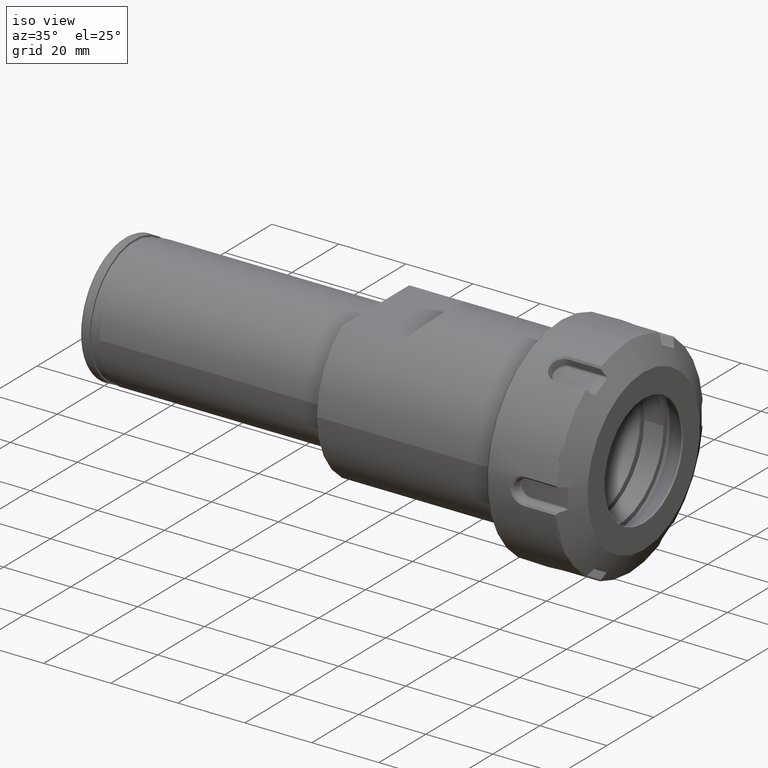
[diagram: clean part render]
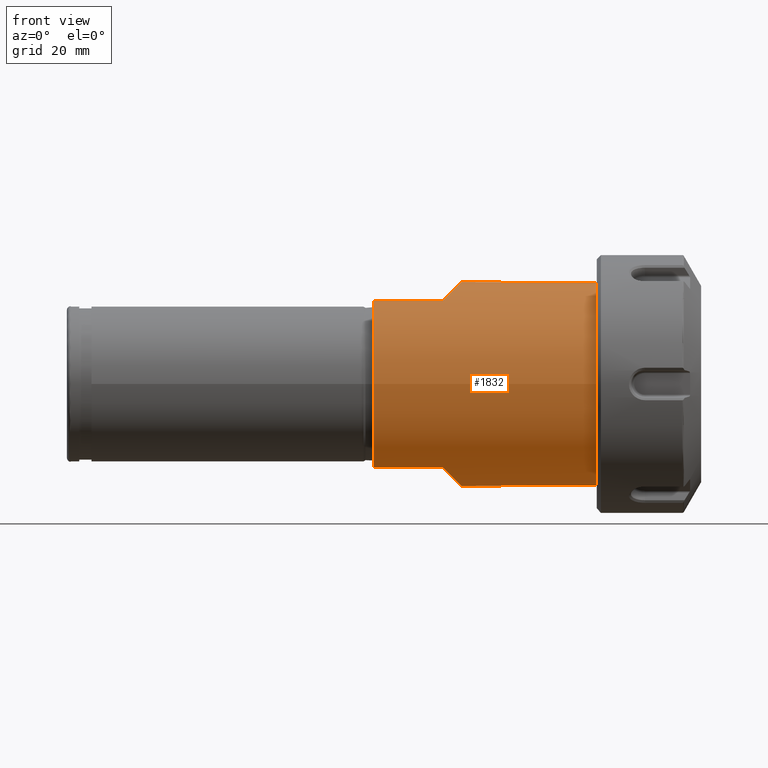
[diagram: tour spotlight — one face highlighted and labeled with its STEP entity id]
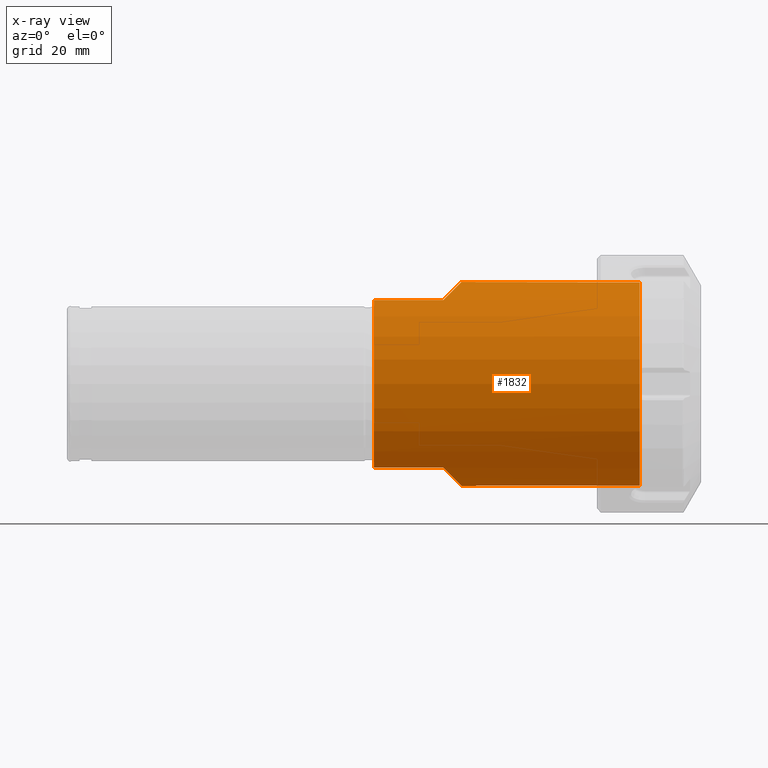
[diagram: x-ray of the same camera — body ghosted, this tour face saturated]
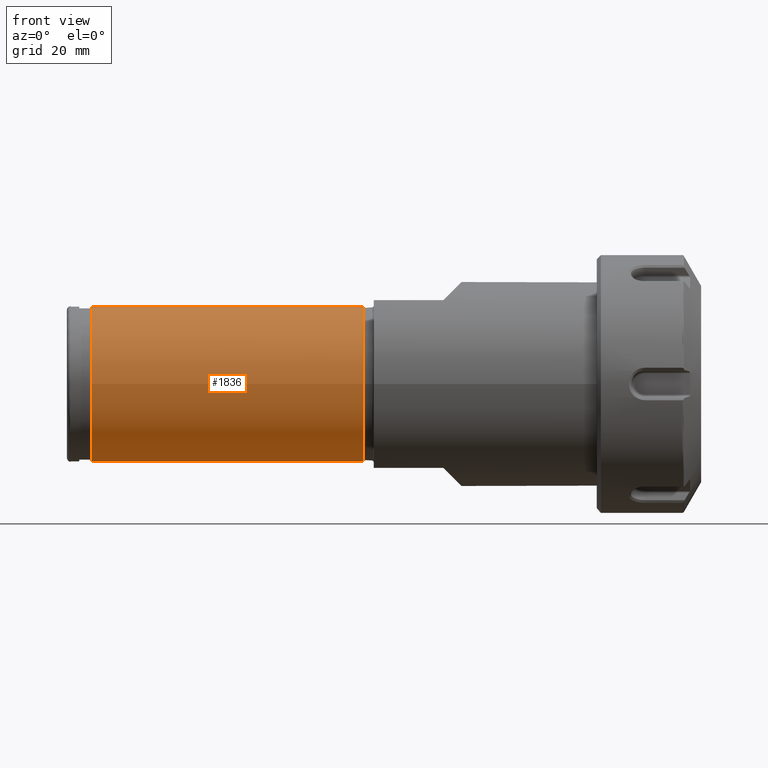
[diagram: tour spotlight — one face highlighted and labeled with its STEP entity id]
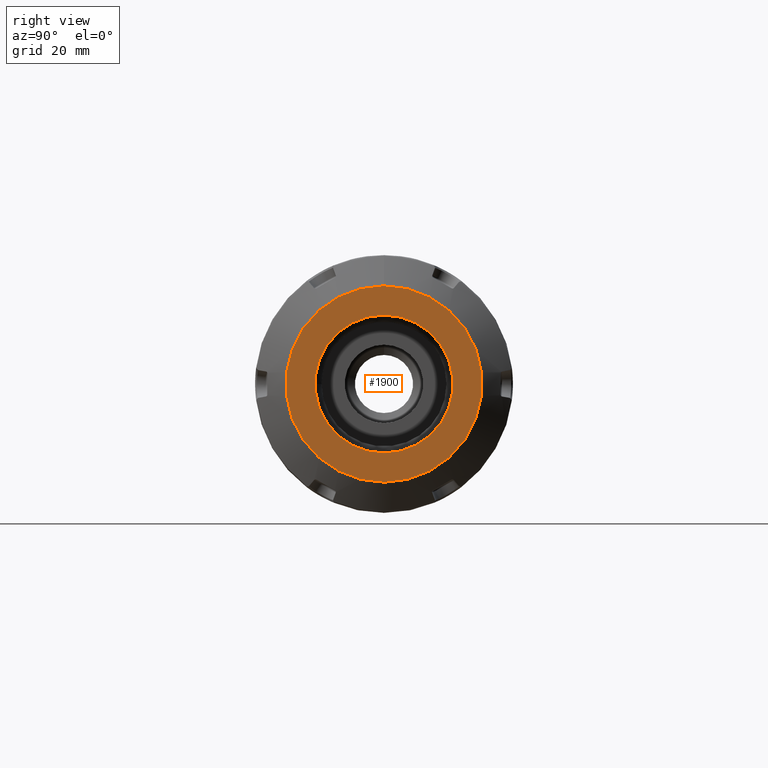
[diagram: tour spotlight — one face highlighted and labeled with its STEP entity id]
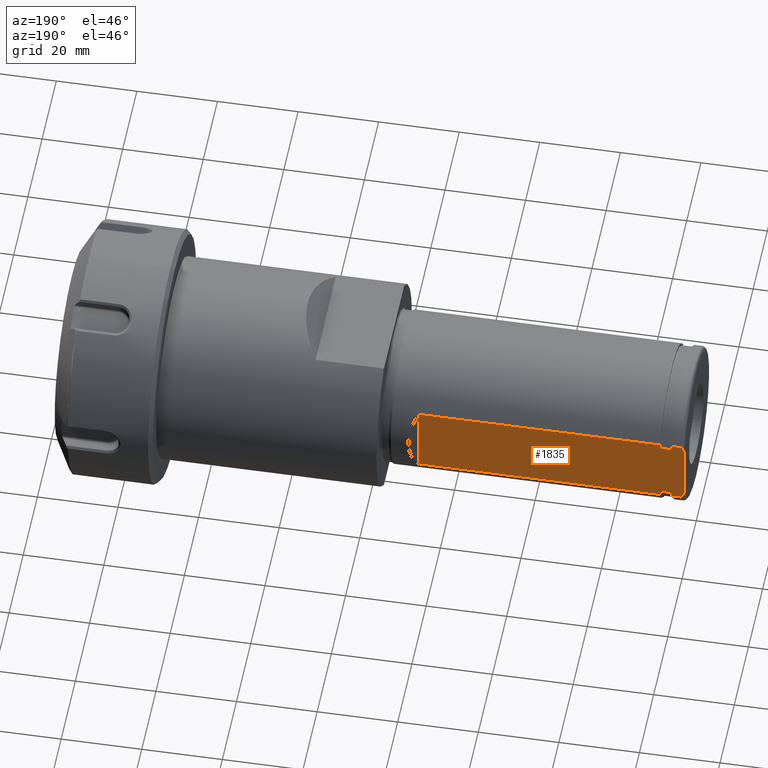
[diagram: tour spotlight — one face highlighted and labeled with its STEP entity id]
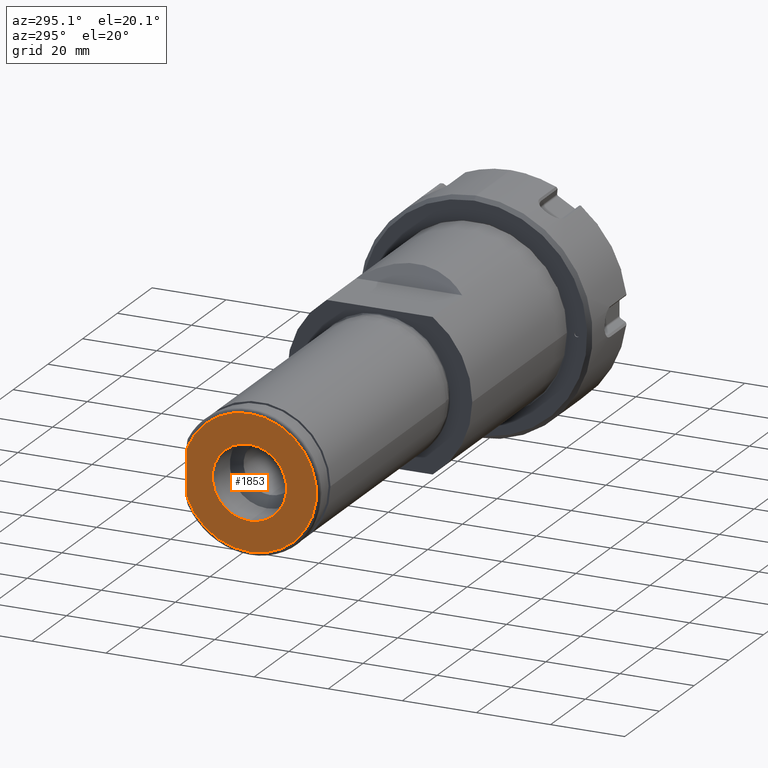
[diagram: tour spotlight — one face highlighted and labeled with its STEP entity id]
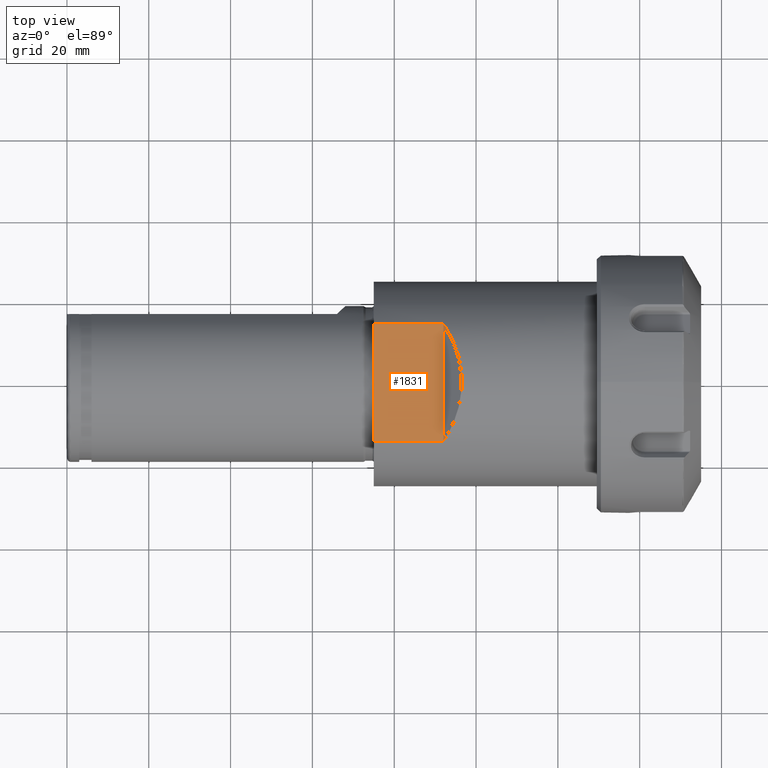
[diagram: tour spotlight — one face highlighted and labeled with its STEP entity id]
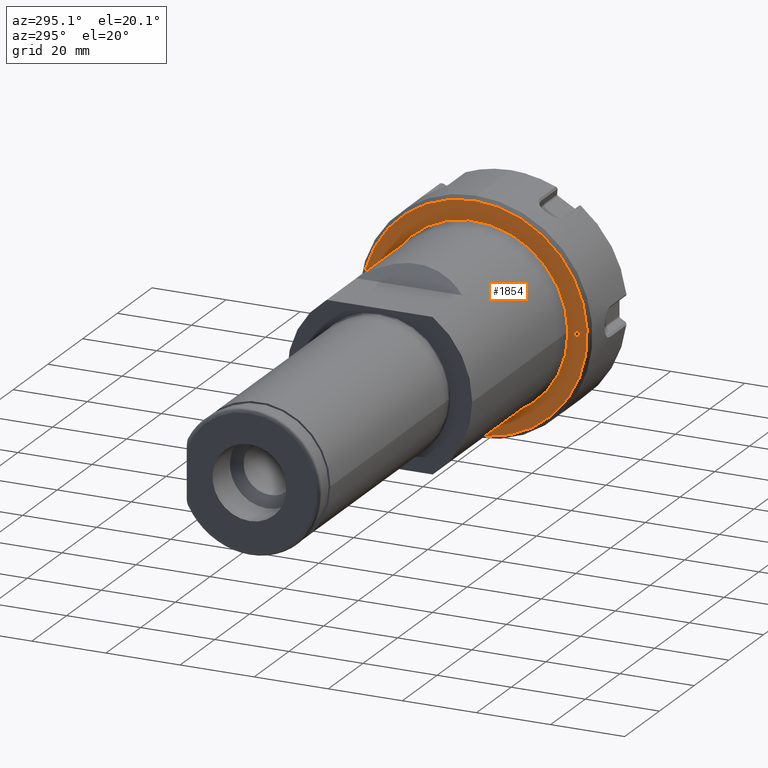
[diagram: tour spotlight — one face highlighted and labeled with its STEP entity id]
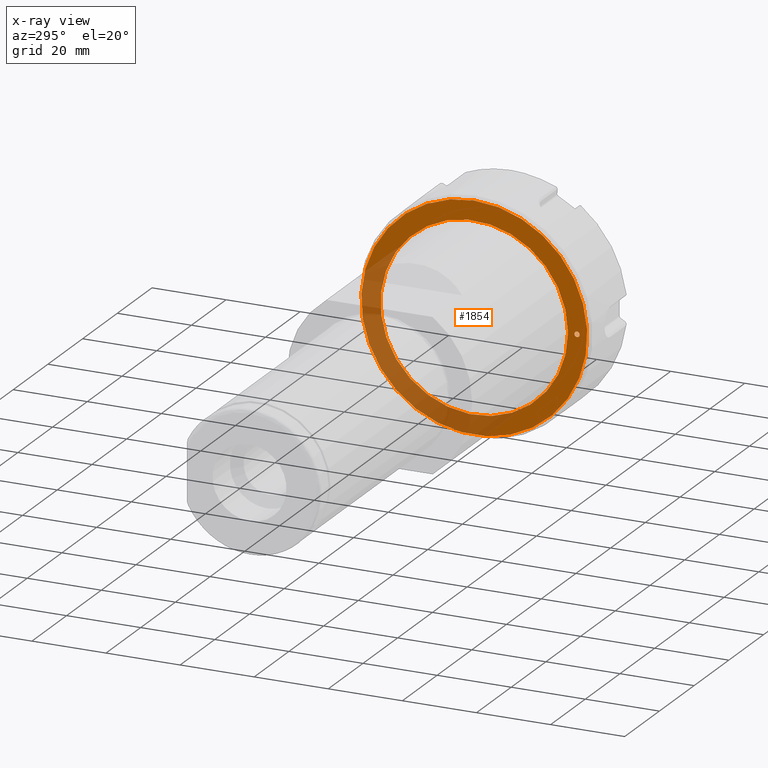
[diagram: x-ray of the same camera — body ghosted, this tour face saturated]
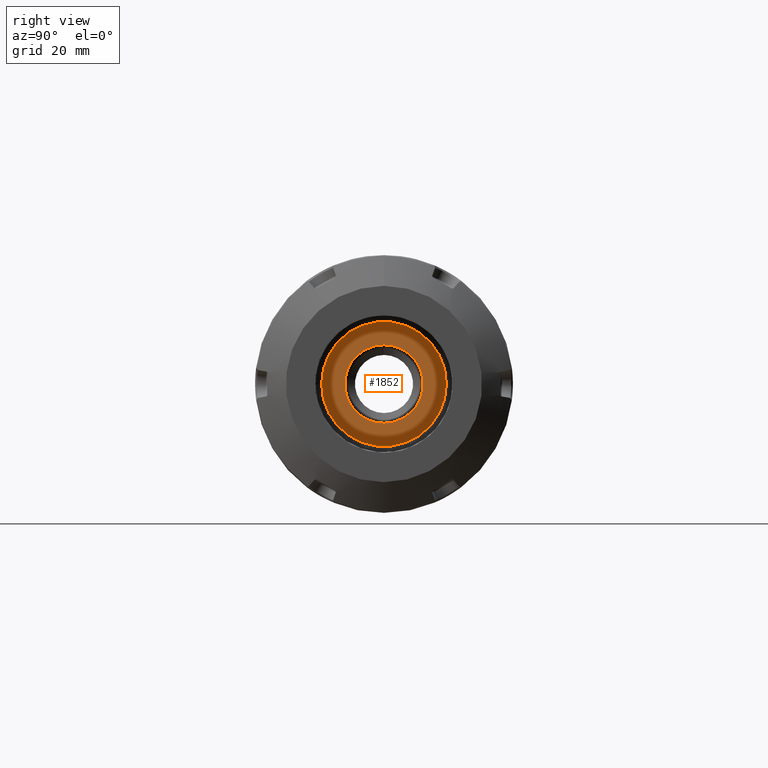
[diagram: tour spotlight — one face highlighted and labeled with its STEP entity id]
A machine part: a face-by-face anatomy tour. The part has 111 B-rep faces; the first image is the clean iso view, then the 8 largest visible faces are spotlighted one at a time (largest first), each with its STEP entity span.

Face 1 — front view, entity #1832. An x-ray twin of the same camera follows (body ghosted, this face saturated) — the face is partly hidden behind the body. In plain terms, the highlighted cylindrical surface (bore or boss wall) has radius 25 mm, axis along (1, 0, 0).
Definition (entity closure, byte-faithful):
#215=CYLINDRICAL_SURFACE('',#2024,25.);
#252=CIRCLE('',#2017,25.);
#253=CIRCLE('',#2018,25.);
#254=CIRCLE('',#2019,25.);
#256=CIRCLE('',#2025,25.);
#342=FACE_OUTER_BOUND('',#454,.T.);
#454=EDGE_LOOP('',(#1257,#1258,#1259,#1260,#1261,#1262,#1263,#1264,#1265,
#1266,#1267,#1268));
#570=LINE('',#2728,#684);
#571=LINE('',#2730,#685);
#575=LINE('',#2748,#689);
#576=LINE('',#2749,#690);
#577=LINE('',#2753,#691);
#684=VECTOR('',#2220,10.);
#685=VECTOR('',#2221,10.);
#689=VECTOR('',#2241,10.);
#690=VECTOR('',#2242,10.);
#691=VECTOR('',#2247,25.);
#797=ELLIPSE('',#2014,35.3553390593274,25.);
#798=ELLIPSE('',#2022,35.3553390593274,25.);
#800=VERTEX_POINT('',#2722);
#801=VERTEX_POINT('',#2723);
#802=VERTEX_POINT('',#2727);
#803=VERTEX_POINT('',#2729);
#804=VERTEX_POINT('',#2733);
#805=VERTEX_POINT('',#2735);
#806=VERTEX_POINT('',#2737);
#808=VERTEX_POINT('',#2743);
#809=VERTEX_POINT('',#2744);
#810=VERTEX_POINT('',#2751);
#969=EDGE_CURVE('',#800,#801,#797,.T.);
#971=EDGE_CURVE('',#801,#802,#570,.T.);
#972=EDGE_CURVE('',#803,#800,#571,.T.);
#974=EDGE_CURVE('',#804,#803,#252,.T.);
#975=EDGE_CURVE('',#805,#804,#253,.T.);
#977=EDGE_CURVE('',#802,#806,#254,.T.);
#979=EDGE_CURVE('',#808,#809,#798,.T.);
#981=EDGE_CURVE('',#806,#808,#575,.T.);
#982=EDGE_CURVE('',#809,#805,#576,.T.);
#983=EDGE_CURVE('',#810,#810,#256,.T.);
#984=EDGE_CURVE('',#810,#804,#577,.T.);
#1257=ORIENTED_EDGE('',*,*,#983,.F.);
#1258=ORIENTED_EDGE('',*,*,#984,.T.);
#1259=ORIENTED_EDGE('',*,*,#974,.T.);
#1260=ORIENTED_EDGE('',*,*,#972,.T.);
#1261=ORIENTED_EDGE('',*,*,#969,.T.);
#1262=ORIENTED_EDGE('',*,*,#971,.T.);
#1263=ORIENTED_EDGE('',*,*,#977,.T.);
#1264=ORIENTED_EDGE('',*,*,#981,.T.);
#1265=ORIENTED_EDGE('',*,*,#979,.T.);
#1266=ORIENTED_EDGE('',*,*,#982,.T.);
#1267=ORIENTED_EDGE('',*,*,#975,.T.);
#1268=ORIENTED_EDGE('',*,*,#984,.F.);
#1832=ADVANCED_FACE('',(#342),#215,.T.);
#2014=AXIS2_PLACEMENT_3D('',#2724,#2215,#2216);
#2017=AXIS2_PLACEMENT_3D('',#2734,#2225,#2226);
#2018=AXIS2_PLACEMENT_3D('',#2736,#2227,#2228);
#2019=AXIS2_PLACEMENT_3D('',#2739,#2230,#2231);
#2022=AXIS2_PLACEMENT_3D('',#2745,#2236,#2237);
#2024=AXIS2_PLACEMENT_3D('',#2750,#2243,#2244);
#2025=AXIS2_PLACEMENT_3D('',#2752,#2245,#2246);
#2215=DIRECTION('center_axis',(0.707106781186548,0.,0.707106781186548));
#2216=DIRECTION('ref_axis',(-0.707106781186547,0.,0.707106781186547));
#2220=DIRECTION('',(-1.,0.,0.));
#2221=DIRECTION('',(1.,0.,0.));
#2225=DIRECTION('center_axis',(1.,0.,0.));
#2226=DIRECTION('ref_axis',(0.,0.,-1.));
#2227=DIRECTION('center_axis',(1.,0.,0.));
#2228=DIRECTION('ref_axis',(0.,0.,-1.));
#2230=DIRECTION('center_axis',(1.,0.,0.));
#2231=DIRECTION('ref_axis',(0.,0.,-1.));
#2236=DIRECTION('center_axis',(0.707106781186548,0.,-0.707106781186548));
#2237=DIRECTION('ref_axis',(0.707106781186547,0.,0.707106781186547));
#2241=DIRECTION('',(1.,0.,0.));
#2242=DIRECTION('',(-1.,0.,0.));
#2243=DIRECTION('center_axis',(1.,0.,0.));
#2244=DIRECTION('ref_axis',(0.,1.,0.));
#2245=DIRECTION('center_axis',(1.,0.,0.));
#2246=DIRECTION('ref_axis',(0.,0.,-1.));
#2247=DIRECTION('',(-1.,0.,0.));
#2722=CARTESIAN_POINT('',(-48.,-14.3090880212542,-20.5));
#2723=CARTESIAN_POINT('',(-48.,14.3090880212542,-20.5));
#2724=CARTESIAN_POINT('Origin',(-68.5,0.,0.));
#2727=CARTESIAN_POINT('',(-65.,14.3090880212542,-20.5));
#2728=CARTESIAN_POINT('',(-32.5,14.3090880212542,-20.5));
#2729=CARTESIAN_POINT('',(-65.,-14.3090880212542,-20.5));
#2730=CARTESIAN_POINT('',(-32.5,-14.3090880212542,-20.5));
#2733=CARTESIAN_POINT('',(-65.,-25.,-3.06161699786838E-15));
#2734=CARTESIAN_POINT('Origin',(-65.,0.,0.));
#2735=CARTESIAN_POINT('',(-65.,-14.3090880212542,20.5));
#2736=CARTESIAN_POINT('Origin',(-65.,0.,0.));
#2737=CARTESIAN_POINT('',(-65.,14.3090880212542,20.5));
#2739=CARTESIAN_POINT('Origin',(-65.,0.,0.));
#2743=CARTESIAN_POINT('',(-48.,14.3090880212542,20.5));
#2744=CARTESIAN_POINT('',(-48.,-14.3090880212542,20.5));
#2745=CARTESIAN_POINT('Origin',(-68.5,0.,0.));
#2748=CARTESIAN_POINT('',(-32.5,14.3090880212542,20.5));
#2749=CARTESIAN_POINT('',(-32.5,-14.3090880212542,20.5));
#2750=CARTESIAN_POINT('Origin',(-32.5,0.,0.));
#2751=CARTESIAN_POINT('',(0.,-25.,-3.06161699786838E-15));
#2752=CARTESIAN_POINT('Origin',(0.,0.,0.));
#2753=CARTESIAN_POINT('',(-32.5,-25.,-3.06161699786838E-15));

Face 2 — front view, entity #1836. In plain terms, the highlighted cylindrical surface (bore or boss wall) has radius 19.05 mm, axis along (1, 0, 0).
Definition (entity closure, byte-faithful):
#217=CYLINDRICAL_SURFACE('',#2033,19.05);
#260=CIRCLE('',#2034,19.05);
#261=CIRCLE('',#2035,19.05);
#262=CIRCLE('',#2036,19.05);
#346=FACE_OUTER_BOUND('',#458,.T.);
#458=EDGE_LOOP('',(#1290,#1291,#1292,#1293,#1294,#1295,#1296,#1297));
#580=LINE('',#2769,#694);
#590=LINE('',#2814,#704);
#591=LINE('',#2819,#705);
#694=VECTOR('',#2264,10.);
#704=VECTOR('',#2274,10.);
#705=VECTOR('',#2279,19.05);
#799=ELLIPSE('',#2031,26.9407683632075,19.05);
#814=VERTEX_POINT('',#2763);
#815=VERTEX_POINT('',#2764);
#816=VERTEX_POINT('',#2768);
#827=VERTEX_POINT('',#2812);
#828=VERTEX_POINT('',#2816);
#829=VERTEX_POINT('',#2818);
#989=EDGE_CURVE('',#814,#815,#799,.T.);
#991=EDGE_CURVE('',#816,#814,#580,.T.);
#1003=EDGE_CURVE('',#815,#827,#590,.T.);
#1004=EDGE_CURVE('',#828,#828,#260,.T.);
#1005=EDGE_CURVE('',#828,#829,#591,.T.);
#1006=EDGE_CURVE('',#829,#816,#261,.T.);
#1007=EDGE_CURVE('',#827,#829,#262,.T.);
#1290=ORIENTED_EDGE('',*,*,#1004,.F.);
#1291=ORIENTED_EDGE('',*,*,#1005,.T.);
#1292=ORIENTED_EDGE('',*,*,#1006,.T.);
#1293=ORIENTED_EDGE('',*,*,#991,.T.);
#1294=ORIENTED_EDGE('',*,*,#989,.T.);
#1295=ORIENTED_EDGE('',*,*,#1003,.T.);
#1296=ORIENTED_EDGE('',*,*,#1007,.T.);
#1297=ORIENTED_EDGE('',*,*,#1005,.F.);
#1836=ADVANCED_FACE('',(#346),#217,.T.);
#2031=AXIS2_PLACEMENT_3D('',#2765,#2259,#2260);
#2033=AXIS2_PLACEMENT_3D('',#2815,#2275,#2276);
#2034=AXIS2_PLACEMENT_3D('',#2817,#2277,#2278);
#2035=AXIS2_PLACEMENT_3D('',#2820,#2280,#2281);
#2036=AXIS2_PLACEMENT_3D('',#2821,#2282,#2283);
#2259=DIRECTION('center_axis',(0.707106781186548,-0.707106781186547,0.));
#2260=DIRECTION('ref_axis',(0.707106781186547,0.707106781186548,0.));
#2264=DIRECTION('',(1.,0.,0.));
#2274=DIRECTION('',(-1.,0.,0.));
#2275=DIRECTION('center_axis',(1.,0.,0.));
#2276=DIRECTION('ref_axis',(0.,1.,0.));
#2277=DIRECTION('center_axis',(1.,0.,0.));
#2278=DIRECTION('ref_axis',(0.,0.,-1.));
#2279=DIRECTION('',(-1.,0.,0.));
#2280=DIRECTION('center_axis',(1.,0.,0.));
#2281=DIRECTION('ref_axis',(0.,0.,-1.));
#2282=DIRECTION('center_axis',(1.,0.,0.));
#2283=DIRECTION('ref_axis',(0.,0.,-1.));
#2763=CARTESIAN_POINT('',(-74.,16.95,-8.69482604771365));
#2764=CARTESIAN_POINT('',(-74.,16.95,8.69482604771365));
#2765=CARTESIAN_POINT('Origin',(-90.95,0.,0.));
#2768=CARTESIAN_POINT('',(-134.,16.95,-8.69482604771368));
#2769=CARTESIAN_POINT('',(-100.759807621135,16.95,-8.69482604771365));
#2812=CARTESIAN_POINT('',(-134.,16.95,8.69482604771368));
#2814=CARTESIAN_POINT('',(-100.759807621135,16.95,8.69482604771365));
#2815=CARTESIAN_POINT('Origin',(-100.759807621135,0.,0.));
#2816=CARTESIAN_POINT('',(-67.5196152422707,-19.05,-2.33295215237571E-15));
#2817=CARTESIAN_POINT('Origin',(-67.5196152422707,0.,0.));
#2818=CARTESIAN_POINT('',(-134.,-19.05,-2.33295215237571E-15));
#2819=CARTESIAN_POINT('',(-100.759807621135,-19.05,-2.33295215237571E-15));
#2820=CARTESIAN_POINT('Origin',(-134.,0.,0.));
#2821=CARTESIAN_POINT('Origin',(-134.,0.,0.));

Face 3 — right view, entity #1900. In plain terms, the highlighted planar face has unit normal (1, 0, 0).
Definition (entity closure, byte-faithful):
#248=FACE_BOUND('',#528,.T.);
#297=CIRCLE('',#2094,24.);
#310=CIRCLE('',#2144,16.85);
#410=FACE_OUTER_BOUND('',#527,.T.);
#527=EDGE_LOOP('',(#1632));
#528=EDGE_LOOP('',(#1633));
#918=VERTEX_POINT('',#3449);
#941=VERTEX_POINT('',#4181);
#1115=EDGE_CURVE('',#918,#918,#297,.T.);
#1181=EDGE_CURVE('',#941,#941,#310,.T.);
#1632=ORIENTED_EDGE('',*,*,#1115,.T.);
#1633=ORIENTED_EDGE('',*,*,#1181,.T.);
#1811=PLANE('',#2143);
#1900=ADVANCED_FACE('',(#410,#248),#1811,.T.);
#2094=AXIS2_PLACEMENT_3D('',#3451,#2421,#2422);
#2143=AXIS2_PLACEMENT_3D('',#4180,#2557,#2558);
#2144=AXIS2_PLACEMENT_3D('',#4182,#2559,#2560);
#2421=DIRECTION('center_axis',(1.,0.,0.));
#2422=DIRECTION('ref_axis',(0.,0.,1.));
#2557=DIRECTION('center_axis',(1.,0.,0.));
#2558=DIRECTION('ref_axis',(0.,0.,-1.));
#2559=DIRECTION('center_axis',(-1.,0.,0.));
#2560=DIRECTION('ref_axis',(0.,-1.,0.));
#3449=CARTESIAN_POINT('',(12.75,0.,24.));
#3451=CARTESIAN_POINT('Origin',(12.75,1.234443973541E-14,0.));
#4180=CARTESIAN_POINT('Origin',(12.75,0.,0.));
#4181=CARTESIAN_POINT('',(12.75,-2.06352985656329E-15,16.85));
#4182=CARTESIAN_POINT('Origin',(12.75,0.,0.));

Face 4 — auxiliary view, entity #1835. In plain terms, the highlighted planar face has unit normal (0, -1, 0).
Definition (entity closure, byte-faithful):
#147=B_SPLINE_CURVE_WITH_KNOTS('',3,(#2779,#2780,#2781,#2782,#2783,#2784,
#2785,#2786,#2787,#2788,#2789,#2790),.UNSPECIFIED.,.F.,.F.,(4,2,2,2,2,4),
(-0.271642314478685,-0.14200287948374,-0.0700817055574083,-0.0273774061368079,
-0.0128288164394712,0.),.UNSPECIFIED.);
#148=B_SPLINE_CURVE_WITH_KNOTS('',3,(#2794,#2795,#2796,#2797,#2798,#2799,
#2800,#2801,#2802,#2803,#2804,#2805),.UNSPECIFIED.,.F.,.F.,(4,2,2,2,2,4),
(0.,0.0128288164394712,0.0273774061368079,0.0700817055574082,0.14200287948374,
0.271642314478685),.UNSPECIFIED.);
#345=FACE_OUTER_BOUND('',#457,.T.);
#457=EDGE_LOOP('',(#1276,#1277,#1278,#1279,#1280,#1281,#1282,#1283,#1284,
#1285,#1286,#1287,#1288,#1289));
#579=LINE('',#2766,#693);
#580=LINE('',#2769,#694);
#581=LINE('',#2771,#695);
#582=LINE('',#2773,#696);
#583=LINE('',#2775,#697);
#584=LINE('',#2777,#698);
#585=LINE('',#2792,#699);
#586=LINE('',#2807,#700);
#587=LINE('',#2809,#701);
#588=LINE('',#2811,#702);
#589=LINE('',#2813,#703);
#590=LINE('',#2814,#704);
#693=VECTOR('',#2261,10.);
#694=VECTOR('',#2264,10.);
#695=VECTOR('',#2265,10.);
#696=VECTOR('',#2266,10.);
#697=VECTOR('',#2267,10.);
#698=VECTOR('',#2268,10.);
#699=VECTOR('',#2269,10.);
#700=VECTOR('',#2270,10.);
#701=VECTOR('',#2271,10.);
#702=VECTOR('',#2272,10.);
#703=VECTOR('',#2273,10.);
#704=VECTOR('',#2274,10.);
#814=VERTEX_POINT('',#2763);
#815=VERTEX_POINT('',#2764);
#816=VERTEX_POINT('',#2768);
#817=VERTEX_POINT('',#2770);
#818=VERTEX_POINT('',#2772);
#819=VERTEX_POINT('',#2774);
#820=VERTEX_POINT('',#2776);
#821=VERTEX_POINT('',#2778);
#822=VERTEX_POINT('',#2791);
#823=VERTEX_POINT('',#2793);
#824=VERTEX_POINT('',#2806);
#825=VERTEX_POINT('',#2808);
#826=VERTEX_POINT('',#2810);
#827=VERTEX_POINT('',#2812);
#990=EDGE_CURVE('',#814,#815,#579,.T.);
#991=EDGE_CURVE('',#816,#814,#580,.T.);
#992=EDGE_CURVE('',#817,#816,#581,.T.);
#993=EDGE_CURVE('',#818,#817,#582,.T.);
#994=EDGE_CURVE('',#819,#818,#583,.T.);
#995=EDGE_CURVE('',#820,#819,#584,.T.);
#996=EDGE_CURVE('',#821,#820,#147,.T.);
#997=EDGE_CURVE('',#822,#821,#585,.T.);
#998=EDGE_CURVE('',#823,#822,#148,.T.);
#999=EDGE_CURVE('',#824,#823,#586,.T.);
#1000=EDGE_CURVE('',#825,#824,#587,.T.);
#1001=EDGE_CURVE('',#826,#825,#588,.T.);
#1002=EDGE_CURVE('',#827,#826,#589,.T.);
#1003=EDGE_CURVE('',#815,#827,#590,.T.);
#1276=ORIENTED_EDGE('',*,*,#991,.F.);
#1277=ORIENTED_EDGE('',*,*,#992,.F.);
#1278=ORIENTED_EDGE('',*,*,#993,.F.);
#1279=ORIENTED_EDGE('',*,*,#994,.F.);
#1280=ORIENTED_EDGE('',*,*,#995,.F.);
#1281=ORIENTED_EDGE('',*,*,#996,.F.);
#1282=ORIENTED_EDGE('',*,*,#997,.F.);
#1283=ORIENTED_EDGE('',*,*,#998,.F.);
#1284=ORIENTED_EDGE('',*,*,#999,.F.);
#1285=ORIENTED_EDGE('',*,*,#1000,.F.);
#1286=ORIENTED_EDGE('',*,*,#1001,.F.);
#1287=ORIENTED_EDGE('',*,*,#1002,.F.);
#1288=ORIENTED_EDGE('',*,*,#1003,.F.);
#1289=ORIENTED_EDGE('',*,*,#990,.F.);
#1785=PLANE('',#2032);
#1835=ADVANCED_FACE('',(#345),#1785,.F.);
#2032=AXIS2_PLACEMENT_3D('',#2767,#2262,#2263);
#2261=DIRECTION('',(0.,0.,1.));
#2262=DIRECTION('center_axis',(3.36431219583381E-17,-1.,0.));
#2263=DIRECTION('ref_axis',(-1.,-3.36431219583381E-17,0.));
#2264=DIRECTION('',(1.,0.,0.));
#2265=DIRECTION('',(0.,0.,-1.));
#2266=DIRECTION('',(1.,0.,0.));
#2267=DIRECTION('',(0.,0.,1.));
#2268=DIRECTION('',(1.,0.,0.));
#2269=DIRECTION('',(0.,0.,-1.));
#2270=DIRECTION('',(-1.,0.,0.));
#2271=DIRECTION('',(0.,0.,1.));
#2272=DIRECTION('',(-1.,0.,0.));
#2273=DIRECTION('',(0.,0.,-1.));
#2274=DIRECTION('',(-1.,0.,0.));
#2763=CARTESIAN_POINT('',(-74.,16.95,-8.69482604771365));
#2764=CARTESIAN_POINT('',(-74.,16.95,8.69482604771365));
#2766=CARTESIAN_POINT('',(-74.,16.95,0.));
#2767=CARTESIAN_POINT('Origin',(-74.,16.95,0.));
#2768=CARTESIAN_POINT('',(-134.,16.95,-8.69482604771368));
#2769=CARTESIAN_POINT('',(-100.759807621135,16.95,-8.69482604771365));
#2770=CARTESIAN_POINT('',(-134.,16.95,-7.53657747256666));
#2771=CARTESIAN_POINT('',(-134.,16.95,0.));
#2772=CARTESIAN_POINT('',(-137.,16.95,-7.53657747256666));
#2773=CARTESIAN_POINT('',(-135.5,16.95,-7.53657747256666));
#2774=CARTESIAN_POINT('',(-137.,16.95,-8.69482604771362));
#2775=CARTESIAN_POINT('',(-137.,16.95,0.));
#2776=CARTESIAN_POINT('',(-139.,16.95,-8.69482604771362));
#2777=CARTESIAN_POINT('',(-138.,16.95,-8.69482604771362));
#2778=CARTESIAN_POINT('',(-140.,16.95,-6.20483682299543));
#2779=CARTESIAN_POINT('Ctrl Pts',(-140.,16.95,-6.20483682299543));
#2780=CARTESIAN_POINT('Ctrl Pts',(-140.,16.95,-6.63696827297858));
#2781=CARTESIAN_POINT('Ctrl Pts',(-139.960023075646,16.95,-7.15398275557277));
#2782=CARTESIAN_POINT('Ctrl Pts',(-139.800040666996,16.95,-7.80652637413821));
#2783=CARTESIAN_POINT('Ctrl Pts',(-139.705212060339,16.95,-8.0781327428091));
#2784=CARTESIAN_POINT('Ctrl Pts',(-139.50437224137,16.95,-8.40317465772147));
#2785=CARTESIAN_POINT('Ctrl Pts',(-139.39498617068,16.95,-8.53437375285199));
#2786=CARTESIAN_POINT('Ctrl Pts',(-139.233551422594,16.95,-8.63615714498508));
#2787=CARTESIAN_POINT('Ctrl Pts',(-139.180955478612,16.95,-8.66106196523222));
#2788=CARTESIAN_POINT('Ctrl Pts',(-139.093495232326,16.95,-8.68711444337303));
#2789=CARTESIAN_POINT('Ctrl Pts',(-139.042762721465,16.95,-8.69482604771366));
#2790=CARTESIAN_POINT('Ctrl Pts',(-139.,16.95,-8.69482604771366));
#2791=CARTESIAN_POINT('',(-140.,16.95,6.20483682299543));
#2792=CARTESIAN_POINT('',(-140.,16.95,0.));
#2793=CARTESIAN_POINT('',(-139.,16.95,8.69482604771362));
#2794=CARTESIAN_POINT('Ctrl Pts',(-139.,16.95,8.69482604771366));
#2795=CARTESIAN_POINT('Ctrl Pts',(-139.042762721465,16.95,8.69482604771366));
#2796=CARTESIAN_POINT('Ctrl Pts',(-139.093495232326,16.95,8.68711444337303));
#2797=CARTESIAN_POINT('Ctrl Pts',(-139.180955478612,16.95,8.66106196523222));
#2798=CARTESIAN_POINT('Ctrl Pts',(-139.233551422594,16.95,8.63615714498508));
#2799=CARTESIAN_POINT('Ctrl Pts',(-139.39498617068,16.95,8.53437375285199));
#2800=CARTESIAN_POINT('Ctrl Pts',(-139.50437224137,16.95,8.40317465772147));
#2801=CARTESIAN_POINT('Ctrl Pts',(-139.705212060339,16.95,8.0781327428091));
#2802=CARTESIAN_POINT('Ctrl Pts',(-139.800040666996,16.95,7.80652637413821));
#2803=CARTESIAN_POINT('Ctrl Pts',(-139.960023075646,16.95,7.15398275557277));
#2804=CARTESIAN_POINT('Ctrl Pts',(-140.,16.95,6.63696827297858));
#2805=CARTESIAN_POINT('Ctrl Pts',(-140.,16.95,6.20483682299543));
#2806=CARTESIAN_POINT('',(-137.,16.95,8.69482604771362));
#2807=CARTESIAN_POINT('',(-138.,16.95,8.69482604771362));
#2808=CARTESIAN_POINT('',(-137.,16.95,7.53657747256666));
#2809=CARTESIAN_POINT('',(-137.,16.95,0.));
#2810=CARTESIAN_POINT('',(-134.,16.95,7.53657747256666));
#2811=CARTESIAN_POINT('',(-135.5,16.95,7.53657747256666));
#2812=CARTESIAN_POINT('',(-134.,16.95,8.69482604771368));
#2813=CARTESIAN_POINT('',(-134.,16.95,0.));
#2814=CARTESIAN_POINT('',(-100.759807621135,16.95,8.69482604771365));

Face 5 — auxiliary view, entity #1853. In plain terms, the highlighted planar face has unit normal (-1, 0, 0).
Definition (entity closure, byte-faithful):
#245=FACE_BOUND('',#478,.T.);
#266=CIRCLE('',#2044,10.);
#268=CIRCLE('',#2047,18.05);
#363=FACE_OUTER_BOUND('',#477,.T.);
#477=EDGE_LOOP('',(#1362,#1363));
#478=EDGE_LOOP('',(#1364));
#585=LINE('',#2792,#699);
#699=VECTOR('',#2269,10.);
#821=VERTEX_POINT('',#2778);
#822=VERTEX_POINT('',#2791);
#833=VERTEX_POINT('',#2835);
#997=EDGE_CURVE('',#822,#821,#585,.T.);
#1014=EDGE_CURVE('',#833,#833,#266,.T.);
#1017=EDGE_CURVE('',#822,#821,#268,.T.);
#1362=ORIENTED_EDGE('',*,*,#997,.T.);
#1363=ORIENTED_EDGE('',*,*,#1017,.F.);
#1364=ORIENTED_EDGE('',*,*,#1014,.T.);
#1790=PLANE('',#2069);
#1853=ADVANCED_FACE('',(#363,#245),#1790,.T.);
#2044=AXIS2_PLACEMENT_3D('',#2836,#2301,#2302);
#2047=AXIS2_PLACEMENT_3D('',#2840,#2308,#2309);
#2069=AXIS2_PLACEMENT_3D('',#2872,#2356,#2357);
#2269=DIRECTION('',(0.,0.,-1.));
#2301=DIRECTION('center_axis',(1.,0.,0.));
#2302=DIRECTION('ref_axis',(0.,0.,1.));
#2308=DIRECTION('center_axis',(1.,0.,0.));
#2309=DIRECTION('ref_axis',(0.,0.,-1.));
#2356=DIRECTION('center_axis',(-1.,0.,0.));
#2357=DIRECTION('ref_axis',(0.,0.,1.));
#2778=CARTESIAN_POINT('',(-140.,16.95,-6.20483682299543));
#2791=CARTESIAN_POINT('',(-140.,16.95,6.20483682299543));
#2792=CARTESIAN_POINT('',(-140.,16.95,0.));
#2835=CARTESIAN_POINT('',(-140.,-1.22464679914735E-15,-10.));
#2836=CARTESIAN_POINT('Origin',(-140.,0.,0.));
#2840=CARTESIAN_POINT('Origin',(-140.,0.,0.));
#2872=CARTESIAN_POINT('Origin',(-140.,18.05,0.));

Face 6 — top view, entity #1831. In plain terms, the highlighted planar face has unit normal (0, 0, -1).
Definition (entity closure, byte-faithful):
#341=FACE_OUTER_BOUND('',#453,.T.);
#453=EDGE_LOOP('',(#1253,#1254,#1255,#1256));
#573=LINE('',#2738,#687);
#574=LINE('',#2746,#688);
#575=LINE('',#2748,#689);
#576=LINE('',#2749,#690);
#687=VECTOR('',#2229,10.);
#688=VECTOR('',#2238,10.);
#689=VECTOR('',#2241,10.);
#690=VECTOR('',#2242,10.);
#805=VERTEX_POINT('',#2735);
#806=VERTEX_POINT('',#2737);
#808=VERTEX_POINT('',#2743);
#809=VERTEX_POINT('',#2744);
#976=EDGE_CURVE('',#805,#806,#573,.T.);
#980=EDGE_CURVE('',#809,#808,#574,.T.);
#981=EDGE_CURVE('',#806,#808,#575,.T.);
#982=EDGE_CURVE('',#809,#805,#576,.T.);
#1253=ORIENTED_EDGE('',*,*,#981,.F.);
#1254=ORIENTED_EDGE('',*,*,#976,.F.);
#1255=ORIENTED_EDGE('',*,*,#982,.F.);
#1256=ORIENTED_EDGE('',*,*,#980,.T.);
#1783=PLANE('',#2023);
#1831=ADVANCED_FACE('',(#341),#1783,.F.);
#2023=AXIS2_PLACEMENT_3D('',#2747,#2239,#2240);
#2229=DIRECTION('',(0.,1.,0.));
#2238=DIRECTION('',(0.,1.,0.));
#2239=DIRECTION('center_axis',(0.,0.,-1.));
#2240=DIRECTION('ref_axis',(1.,0.,0.));
#2241=DIRECTION('',(1.,0.,0.));
#2242=DIRECTION('',(-1.,0.,0.));
#2735=CARTESIAN_POINT('',(-65.,-14.3090880212542,20.5));
#2737=CARTESIAN_POINT('',(-65.,14.3090880212542,20.5));
#2738=CARTESIAN_POINT('',(-65.,12.5,20.5));
#2743=CARTESIAN_POINT('',(-48.,14.3090880212542,20.5));
#2744=CARTESIAN_POINT('',(-48.,-14.3090880212542,20.5));
#2746=CARTESIAN_POINT('',(-48.,0.,20.5));
#2747=CARTESIAN_POINT('Origin',(-65.,0.,20.5));
#2748=CARTESIAN_POINT('',(-32.5,14.3090880212542,20.5));
#2749=CARTESIAN_POINT('',(-32.5,-14.3090880212542,20.5));

Face 7 — auxiliary view, entity #1854. An x-ray twin of the same camera follows (body ghosted, this face saturated) — the face is partly hidden behind the body. In plain terms, the highlighted planar face has unit normal (1, 0, 0).
Definition (entity closure, byte-faithful):
#246=FACE_BOUND('',#480,.T.);
#247=FACE_BOUND('',#481,.T.);
#279=CIRCLE('',#2072,30.5);
#280=CIRCLE('',#2073,25.3);
#281=CIRCLE('',#2074,0.715);
#364=FACE_OUTER_BOUND('',#479,.T.);
#479=EDGE_LOOP('',(#1365));
#480=EDGE_LOOP('',(#1366));
#481=EDGE_LOOP('',(#1367));
#840=VERTEX_POINT('',#2875);
#841=VERTEX_POINT('',#2877);
#842=VERTEX_POINT('',#2879);
#1032=EDGE_CURVE('',#840,#840,#279,.T.);
#1033=EDGE_CURVE('',#841,#841,#280,.T.);
#1034=EDGE_CURVE('',#842,#842,#281,.T.);
#1365=ORIENTED_EDGE('',*,*,#1032,.T.);
#1366=ORIENTED_EDGE('',*,*,#1033,.T.);
#1367=ORIENTED_EDGE('',*,*,#1034,.T.);
#1791=PLANE('',#2071);
#1854=ADVANCED_FACE('',(#364,#246,#247),#1791,.F.);
#2071=AXIS2_PLACEMENT_3D('',#2874,#2360,#2361);
#2072=AXIS2_PLACEMENT_3D('',#2876,#2362,#2363);
#2073=AXIS2_PLACEMENT_3D('',#2878,#2364,#2365);
#2074=AXIS2_PLACEMENT_3D('',#2880,#2366,#2367);
#2360=DIRECTION('center_axis',(1.,0.,0.));
#2361=DIRECTION('ref_axis',(0.,0.,-1.));
#2362=DIRECTION('center_axis',(-1.,0.,0.));
#2363=DIRECTION('ref_axis',(0.,0.,1.));
#2364=DIRECTION('center_axis',(1.,0.,0.));
#2365=DIRECTION('ref_axis',(0.,-1.,0.));
#2366=DIRECTION('center_axis',(1.,0.,0.));
#2367=DIRECTION('ref_axis',(0.,1.,0.));
#2874=CARTESIAN_POINT('Origin',(-12.75,0.,0.));
#2875=CARTESIAN_POINT('',(-12.75,-3.73517273739943E-15,30.5));
#2876=CARTESIAN_POINT('Origin',(-12.75,0.,0.));
#2877=CARTESIAN_POINT('',(-12.75,-25.2995638245362,0.148560722325336));
#2878=CARTESIAN_POINT('Origin',(-12.75,0.,0.));
#2879=CARTESIAN_POINT('',(-12.75,-28.465,0.));
#2880=CARTESIAN_POINT('Origin',(-12.75,-27.75,0.));

Face 8 — right view, entity #1852. In plain terms, the highlighted planar face has unit normal (1, 0, 0).
Definition (entity closure, byte-faithful):
#244=FACE_BOUND('',#476,.T.);
#264=CIRCLE('',#2040,9.5885);
#278=CIRCLE('',#2067,15.25);
#362=FACE_OUTER_BOUND('',#475,.T.);
#475=EDGE_LOOP('',(#1360));
#476=EDGE_LOOP('',(#1361));
#831=VERTEX_POINT('',#2827);
#839=VERTEX_POINT('',#2868);
#1010=EDGE_CURVE('',#831,#831,#264,.T.);
#1031=EDGE_CURVE('',#839,#839,#278,.T.);
#1360=ORIENTED_EDGE('',*,*,#1031,.T.);
#1361=ORIENTED_EDGE('',*,*,#1010,.T.);
#1789=PLANE('',#2068);
#1852=ADVANCED_FACE('',(#362,#244),#1789,.T.);
#2040=AXIS2_PLACEMENT_3D('',#2828,#2291,#2292);
#2067=AXIS2_PLACEMENT_3D('',#2870,#2352,#2353);
#2068=AXIS2_PLACEMENT_3D('',#2871,#2354,#2355);
#2291=DIRECTION('center_axis',(-1.,0.,0.));
#2292=DIRECTION('ref_axis',(0.,0.,-1.));
#2352=DIRECTION('center_axis',(1.,0.,0.));
#2353=DIRECTION('ref_axis',(0.,0.,-1.));
#2354=DIRECTION('center_axis',(1.,0.,0.));
#2355=DIRECTION('ref_axis',(0.,0.,-1.));
#2827=CARTESIAN_POINT('',(-54.,-1.17425258336244E-15,9.5885));
#2828=CARTESIAN_POINT('Origin',(-54.,0.,0.));
#2868=CARTESIAN_POINT('',(-54.,-15.25,-1.86758636869971E-15));
#2870=CARTESIAN_POINT('Origin',(-54.,0.,0.));
#2871=CARTESIAN_POINT('Origin',(-54.,-9.97683248388597E-16,0.));